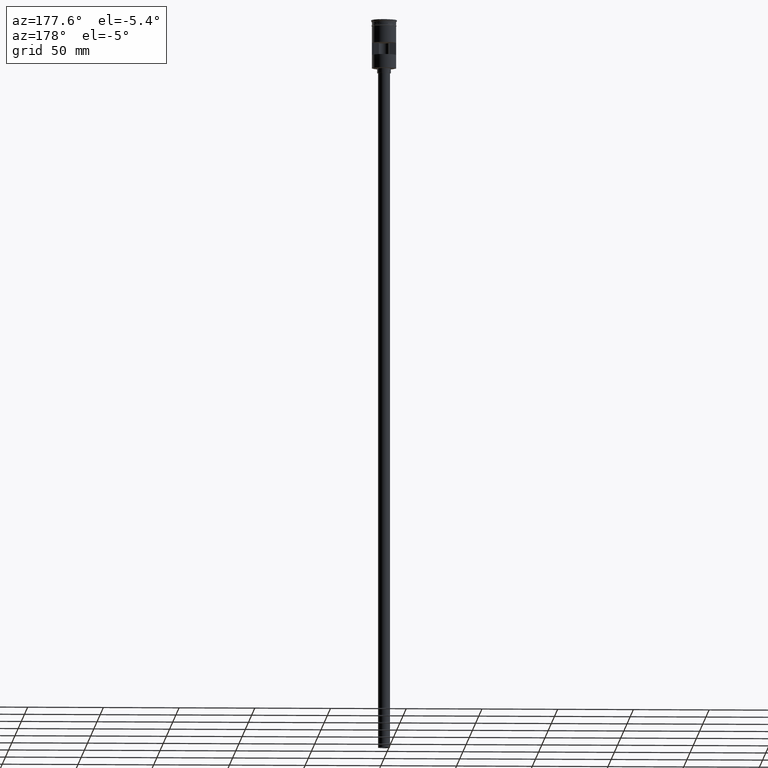
[diagram: clean part render]
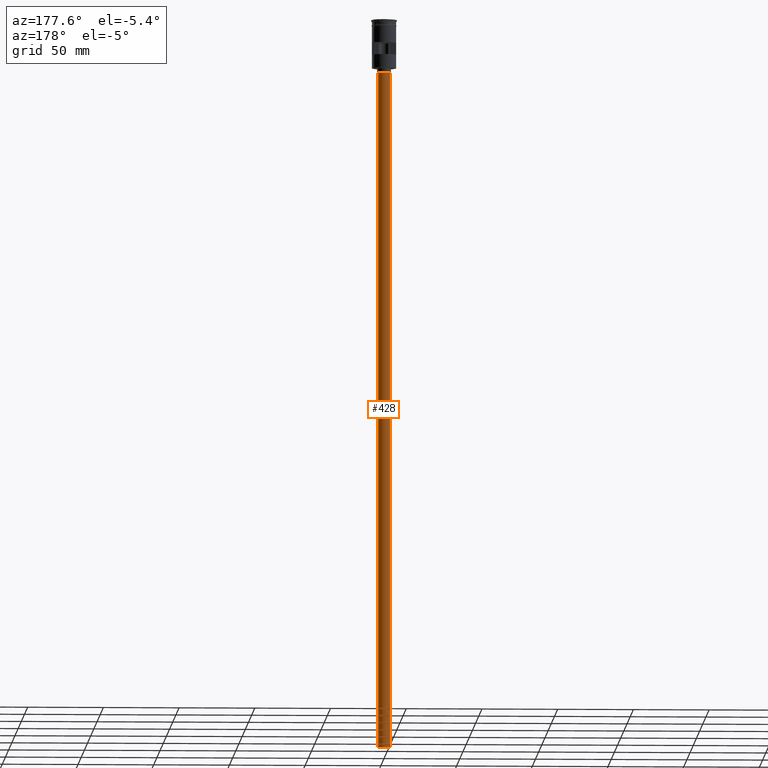
[diagram: same view with one face highlighted and labeled with its STEP entity id]
A machine part, auxiliary view. The second image highlights one B-rep face of the part: STEP entity #428.
In plain terms, the highlighted cylindrical surface (edge-blend (fillet) strip) has radius 4 mm, axis along (-0, -0, 1).
Its self-contained STEP definition (entity closure, byte-faithful):
#12 = CARTESIAN_POINT ( 'NONE',  ( -4.000000000000000000, 4.898587196589412829E-16, -482.0000000000000000 ) ) ;
#56 = CARTESIAN_POINT ( 'NONE',  ( 0.000000000000000000, 0.000000000000000000, -35.00000000000000000 ) ) ;
#66 = VECTOR ( 'NONE', #596, 1000.000000000000000 ) ;
#79 = DIRECTION ( 'NONE',  ( 0.000000000000000000, 0.000000000000000000, -1.000000000000000000 ) ) ;
#103 = EDGE_CURVE ( 'NONE', #1032, #1487, #499, .T. ) ;
#141 = VERTEX_POINT ( 'NONE', #576 ) ;
#235 = CARTESIAN_POINT ( 'NONE',  ( 0.000000000000000000, 0.000000000000000000, -482.0000000000000000 ) ) ;
#428 = ADVANCED_FACE ( 'NONE', ( #1081 ), #1556, .T. ) ;
#499 = CIRCLE ( 'NONE', #911, 4.000000000000000000 ) ;
#523 = VECTOR ( 'NONE', #1088, 1000.000000000000000 ) ;
#550 = ORIENTED_EDGE ( 'NONE', *, *, #604, .T. ) ;
#576 = CARTESIAN_POINT ( 'NONE',  ( 4.000000000000000000, 0.000000000000000000, -35.00000000000000000 ) ) ;
#596 = DIRECTION ( 'NONE',  ( -0.000000000000000000, -0.000000000000000000, 1.000000000000000000 ) ) ;
#604 = EDGE_CURVE ( 'NONE', #1032, #860, #752, .T. ) ;
#667 = DIRECTION ( 'NONE',  ( 0.000000000000000000, 0.000000000000000000, -1.000000000000000000 ) ) ;
#689 = DIRECTION ( 'NONE',  ( 1.000000000000000000, 0.000000000000000000, 0.000000000000000000 ) ) ;
#719 = ORIENTED_EDGE ( 'NONE', *, *, #103, .F. ) ;
#748 = CARTESIAN_POINT ( 'NONE',  ( 4.000000000000000000, 0.000000000000000000, -482.0000000000000000 ) ) ;
#752 = LINE ( 'NONE', #12, #523 ) ;
#860 = VERTEX_POINT ( 'NONE', #950 ) ;
#863 = EDGE_LOOP ( 'NONE', ( #719, #550, #968, #1570 ) ) ;
#911 = AXIS2_PLACEMENT_3D ( 'NONE', #939, #79, #1194 ) ;
#939 = CARTESIAN_POINT ( 'NONE',  ( 0.000000000000000000, 0.000000000000000000, -482.0000000000000000 ) ) ;
#950 = CARTESIAN_POINT ( 'NONE',  ( -4.000000000000000000, 4.898587196589412829E-16, -35.00000000000000000 ) ) ;
#960 = DIRECTION ( 'NONE',  ( -0.000000000000000000, -0.000000000000000000, 1.000000000000000000 ) ) ;
#968 = ORIENTED_EDGE ( 'NONE', *, *, #1336, .T. ) ;
#1000 = DIRECTION ( 'NONE',  ( -1.000000000000000000, 0.000000000000000000, 0.000000000000000000 ) ) ;
#1015 = CIRCLE ( 'NONE', #1337, 4.000000000000000000 ) ;
#1032 = VERTEX_POINT ( 'NONE', #1225 ) ;
#1081 = FACE_OUTER_BOUND ( 'NONE', #863, .T. ) ;
#1088 = DIRECTION ( 'NONE',  ( -0.000000000000000000, -0.000000000000000000, 1.000000000000000000 ) ) ;
#1194 = DIRECTION ( 'NONE',  ( -1.000000000000000000, 0.000000000000000000, 0.000000000000000000 ) ) ;
#1210 = LINE ( 'NONE', #1324, #66 ) ;
#1225 = CARTESIAN_POINT ( 'NONE',  ( -4.000000000000000000, 4.898587196589412829E-16, -482.0000000000000000 ) ) ;
#1261 = AXIS2_PLACEMENT_3D ( 'NONE', #235, #960, #689 ) ;
#1324 = CARTESIAN_POINT ( 'NONE',  ( 4.000000000000000000, 0.000000000000000000, -482.0000000000000000 ) ) ;
#1336 = EDGE_CURVE ( 'NONE', #860, #141, #1015, .T. ) ;
#1337 = AXIS2_PLACEMENT_3D ( 'NONE', #56, #667, #1000 ) ;
#1428 = EDGE_CURVE ( 'NONE', #1487, #141, #1210, .T. ) ;
#1487 = VERTEX_POINT ( 'NONE', #748 ) ;
#1556 = CYLINDRICAL_SURFACE ( 'NONE', #1261, 4.000000000000000000 ) ;
#1570 = ORIENTED_EDGE ( 'NONE', *, *, #1428, .F. ) ;